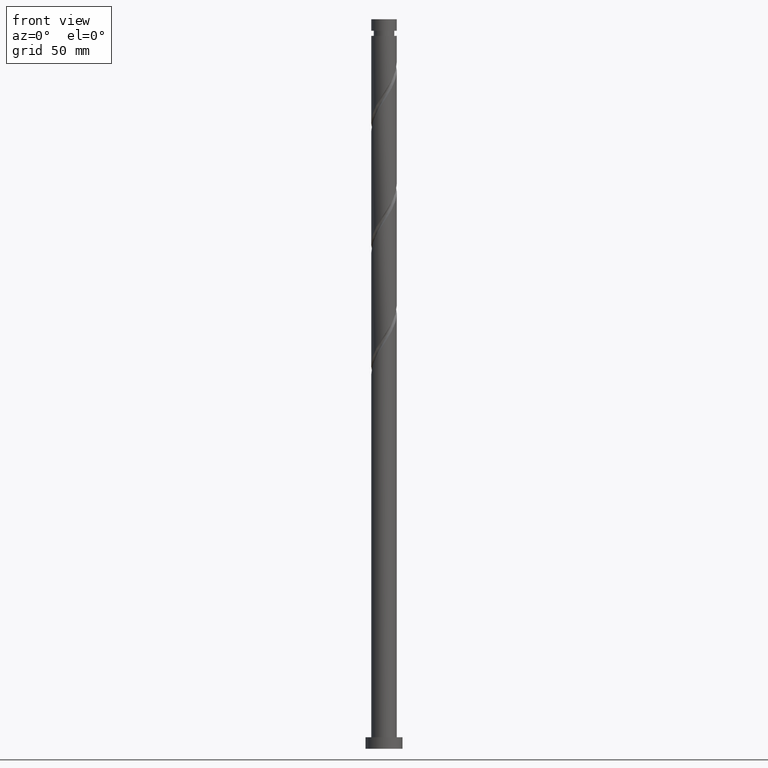
[diagram: clean part render]
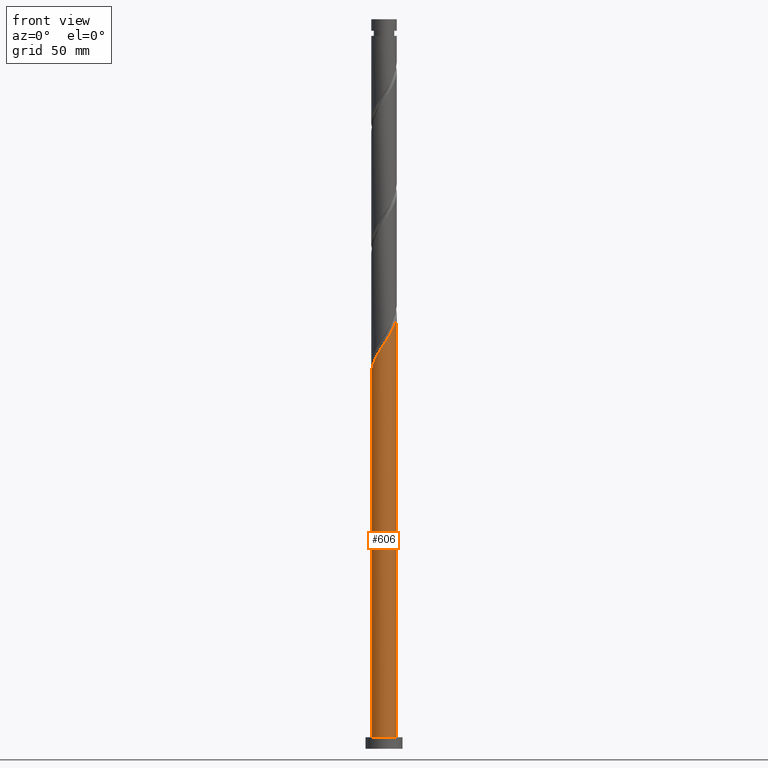
[diagram: same view with one face highlighted and labeled with its STEP entity id]
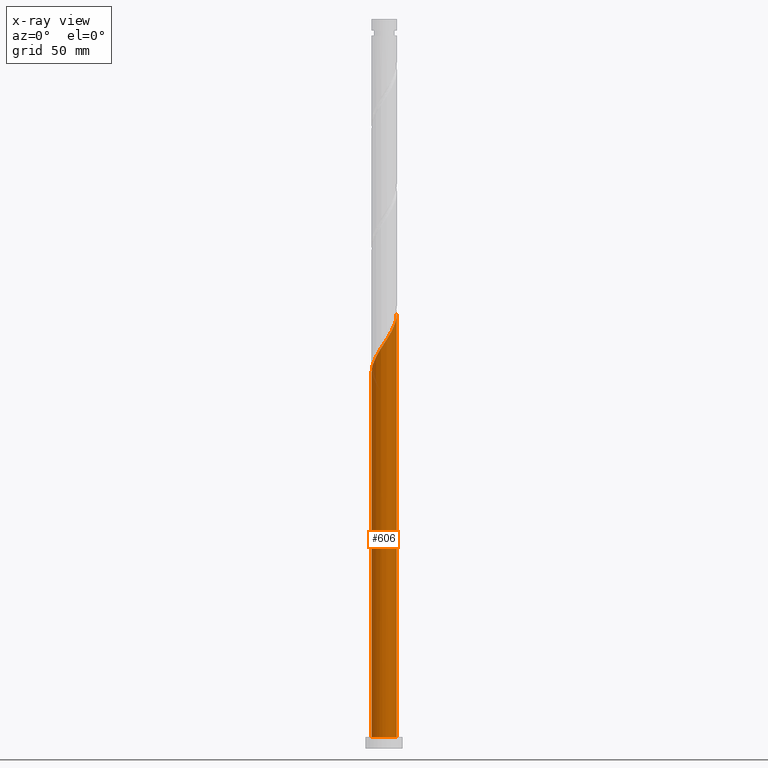
[diagram: x-ray of the same camera — body ghosted, the highlighted face saturated]
A machine part, front view. The second image highlights one B-rep face of the part: STEP entity #606.
The next image is the same camera in x-ray: the body ghosted, the highlighted face saturated — about 0% of this face is hidden behind the body in this view.
In plain terms, the highlighted cylindrical surface (edge-blend (fillet) strip) has radius 5.5 mm, axis along (-0, -0, -1).
Its self-contained STEP definition (entity closure, byte-faithful):
#5 = CARTESIAN_POINT ( 'NONE',  ( 0.000000000000000000, 0.000000000000000000, 315.0000000000000000 ) ) ;
#17 = DIRECTION ( 'NONE',  ( -1.000000000000000000, 0.000000000000000000, 0.000000000000000000 ) ) ;
#32 = CARTESIAN_POINT ( 'NONE',  ( -4.755949694677310546, -2.831072595522295732, 166.2382921569054020 ) ) ;
#40 = CARTESIAN_POINT ( 'NONE',  ( -5.266681024327279026, -1.701793326878884738, 164.3632921569053735 ) ) ;
#61 = EDGE_LOOP ( 'NONE', ( #1679, #1676, #1774, #801 ) ) ;
#79 = CARTESIAN_POINT ( 'NONE',  ( 4.216313785307728601, -3.531670718487794680, 182.1757921569054020 ) ) ;
#118 = CARTESIAN_POINT ( 'NONE',  ( 5.178707817116268153, -1.953206308703049121, 184.9882921569054020 ) ) ;
#176 = CARTESIAN_POINT ( 'NONE',  ( -5.500000000000007994, -0.5527707983925679303, 162.5895461579629000 ) ) ;
#203 = DIRECTION ( 'NONE',  ( 1.000000000000000000, 0.000000000000000000, 0.000000000000000000 ) ) ;
#223 = CARTESIAN_POINT ( 'NONE',  ( 2.831072595522295732, -4.755949694677310546, 179.3632921569054020 ) ) ;
#240 = CARTESIAN_POINT ( 'NONE',  ( -0.1323427068484825109, -5.498407533817776915, 174.6757921569053735 ) ) ;
#363 = CARTESIAN_POINT ( 'NONE',  ( 0.000000000000000000, 0.000000000000000000, 5.000000000000000000 ) ) ;
#371 = DIRECTION ( 'NONE',  ( 0.000000000000000000, 0.000000000000000000, 1.000000000000000000 ) ) ;
#378 = CARTESIAN_POINT ( 'NONE',  ( 4.896472662517576069, -2.504906278729428948, 184.0507921569053451 ) ) ;
#417 = CARTESIAN_POINT ( 'NONE',  ( -1.352535378577850000, -5.331101954539544607, 172.8007921569053167 ) ) ;
#443 = VERTEX_POINT ( 'NONE', #563 ) ;
#451 = VERTEX_POINT ( 'NONE', #1161 ) ;
#501 = CARTESIAN_POINT ( 'NONE',  ( -4.006735188219782806, -3.818390062696571441, 168.1132921569053735 ) ) ;
#529 = CARTESIAN_POINT ( 'NONE',  ( -3.056606248755807886, -4.614237507918886649, 169.9882921569053735 ) ) ;
#538 = CARTESIAN_POINT ( 'NONE',  ( 5.500000000000005329, -0.06618093441514699693, 187.9009123907741525 ) ) ;
#563 = CARTESIAN_POINT ( 'NONE',  ( -5.500000000000000000, 0.000000000000000000, 5.000000000000000000 ) ) ;
#587 = VECTOR ( 'NONE', #770, 1000.000000000000000 ) ;
#606 = ADVANCED_FACE ( 'NONE', ( #1915 ), #1471, .T. ) ;
#638 = CARTESIAN_POINT ( 'NONE',  ( -4.381342441448544456, -3.324731329109432476, 167.1757921569053735 ) ) ;
#671 = CARTESIAN_POINT ( 'NONE',  ( -5.500000000000006217, -1.440337144827273553E-15, 161.7512750789992992 ) ) ;
#679 = CARTESIAN_POINT ( 'NONE',  ( 5.483496091962820174, -0.7518644484526513239, 186.8632921569054588 ) ) ;
#703 = CARTESIAN_POINT ( 'NONE',  ( 2.266432961200590235, -5.011315359502294342, 178.4257921569054020 ) ) ;
#747 = CIRCLE ( 'NONE', #1830, 5.500000000000000000 ) ;
#751 = VECTOR ( 'NONE', #1233, 1000.000000000000000 ) ;
#770 = DIRECTION ( 'NONE',  ( -0.000000000000000000, -0.000000000000000000, -1.000000000000000000 ) ) ;
#801 = ORIENTED_EDGE ( 'NONE', *, *, #880, .T. ) ;
#822 =( BOUNDED_CURVE ( )  B_SPLINE_CURVE ( 2, ( #671, #176, #1256, #40, #1707, #32, #638, #501, #953, #529, #869, #1571, #417, #1875, #240, #1884, #1450, #1744, #703, #223, #1120, #1423, #79, #1900, #378, #118, #1867, #679, #1892, #538, #982 ),
 .UNSPECIFIED., .F., .T. ) 
 B_SPLINE_CURVE_WITH_KNOTS ( ( 3, 2, 2, 2, 2, 2, 2, 2, 2, 2, 2, 2, 2, 2, 2, 3 ),
 ( 0.05453034012992206969, 0.06250000000000000000, 0.07142857142857139685, 0.08035714285714290472, 0.08928571428571430157, 0.09821428571428569843, 0.1071428571428570953, 0.1160714285714286031, 0.1250000000000000000, 0.1339285714285713969, 0.1428571428571429047, 0.1517857142857143016, 0.1607142857142856984, 0.1696428571428570953, 0.1785714285714286031, 0.1795303401299220836 ),
 .UNSPECIFIED. ) 
 CURVE ( )  GEOMETRIC_REPRESENTATION_ITEM ( )  RATIONAL_B_SPLINE_CURVE ( ( 0.9079949616362037457, 0.9039886423360669054, 0.9090909090909338186, 0.9033747362666085801, 0.9090909090909338186, 0.9033747362666085801, 0.9090909090909338186, 0.9033747362666085801, 0.9090909090909338186, 0.9033747362666085801, 0.9090909090909338186, 0.9033747362666085801, 0.9090909090909338186, 0.9033747362666085801, 0.9090909090909338186, 0.9033747362666085801, 0.9090909090909338186, 0.9033747362666085801, 0.9090909090909338186, 0.9033747362666085801, 0.9090909090909338186, 0.9033747362666085801, 0.9090909090909338186, 0.9033747362666085801, 0.9090909090909338186, 0.9033747362666085801, 0.9090909090909338186, 0.9033747362666085801, 0.9090909090909338186, 0.9084770030214756042, 0.9079949616362038567 ) ) 
 REPRESENTATION_ITEM ( '' )  );
#869 = CARTESIAN_POINT ( 'NONE',  ( -2.504906278729428060, -4.896472662517576069, 170.9257921569053735 ) ) ;
#880 = EDGE_CURVE ( 'NONE', #443, #451, #747, .T. ) ;
#953 = CARTESIAN_POINT ( 'NONE',  ( -3.531670718487794236, -4.216313785307728601, 169.0507921569054304 ) ) ;
#972 = CARTESIAN_POINT ( 'NONE',  ( 5.500000000000006217, 6.268824879040983257E-16, 188.0012750789992708 ) ) ;
#982 = CARTESIAN_POINT ( 'NONE',  ( 5.500000000000006217, 6.268824879040983257E-16, 188.0012750789992424 ) ) ;
#1032 = VERTEX_POINT ( 'NONE', #972 ) ;
#1055 = CARTESIAN_POINT ( 'NONE',  ( 5.500000000000000000, 6.735557395310442023E-16, 315.0000000000000000 ) ) ;
#1071 = EDGE_CURVE ( 'NONE', #1721, #1032, #822, .T. ) ;
#1120 = CARTESIAN_POINT ( 'NONE',  ( 3.324731329109432476, -4.381342441448544456, 180.3007921569053735 ) ) ;
#1161 = CARTESIAN_POINT ( 'NONE',  ( 5.500000000000000000, 6.735557395310442023E-16, 5.000000000000000000 ) ) ;
#1233 = DIRECTION ( 'NONE',  ( -0.000000000000000000, -0.000000000000000000, -1.000000000000000000 ) ) ;
#1256 = CARTESIAN_POINT ( 'NONE',  ( -5.390000000000005898, -1.094486180817284771, 163.4257921569054020 ) ) ;
#1325 = EDGE_CURVE ( 'NONE', #1032, #451, #1633, .T. ) ;
#1423 = CARTESIAN_POINT ( 'NONE',  ( 3.818390062696571441, -4.006735188219782806, 181.2382921569053735 ) ) ;
#1450 = CARTESIAN_POINT ( 'NONE',  ( 1.094486180817284549, -5.390000000000005898, 176.5507921569053451 ) ) ;
#1469 = EDGE_CURVE ( 'NONE', #1721, #443, #1527, .T. ) ;
#1471 = CYLINDRICAL_SURFACE ( 'NONE', #1641, 5.500000000000000000 ) ;
#1508 = CARTESIAN_POINT ( 'NONE',  ( -5.500000000000000000, 0.000000000000000000, 315.0000000000000000 ) ) ;
#1527 = LINE ( 'NONE', #1508, #751 ) ;
#1571 = CARTESIAN_POINT ( 'NONE',  ( -1.953206308703049121, -5.178707817116268153, 171.8632921569053735 ) ) ;
#1633 = LINE ( 'NONE', #1055, #587 ) ;
#1641 = AXIS2_PLACEMENT_3D ( 'NONE', #5, #1656, #17 ) ;
#1656 = DIRECTION ( 'NONE',  ( -0.000000000000000000, -0.000000000000000000, -1.000000000000000000 ) ) ;
#1676 = ORIENTED_EDGE ( 'NONE', *, *, #1071, .F. ) ;
#1679 = ORIENTED_EDGE ( 'NONE', *, *, #1325, .F. ) ;
#1707 = CARTESIAN_POINT ( 'NONE',  ( -5.011315359502294342, -2.266432961200590235, 165.3007921569053735 ) ) ;
#1721 = VERTEX_POINT ( 'NONE', #1722 ) ;
#1722 = CARTESIAN_POINT ( 'NONE',  ( -5.500000000000006217, -1.440337144827273553E-15, 161.7512750789993277 ) ) ;
#1744 = CARTESIAN_POINT ( 'NONE',  ( 1.701793326878884072, -5.266681024327279026, 177.4882921569054020 ) ) ;
#1774 = ORIENTED_EDGE ( 'NONE', *, *, #1469, .T. ) ;
#1830 = AXIS2_PLACEMENT_3D ( 'NONE', #363, #371, #203 ) ;
#1867 = CARTESIAN_POINT ( 'NONE',  ( 5.331101954539544607, -1.352535378577850000, 185.9257921569053167 ) ) ;
#1875 = CARTESIAN_POINT ( 'NONE',  ( -0.7518644484526509908, -5.483496091962820174, 173.7382921569054020 ) ) ;
#1884 = CARTESIAN_POINT ( 'NONE',  ( 0.4871790347556856915, -5.513318975672735434, 175.6132921569053451 ) ) ;
#1892 = CARTESIAN_POINT ( 'NONE',  ( 5.498407533817776915, -0.1323427068484828995, 187.8007921569052883 ) ) ;
#1900 = CARTESIAN_POINT ( 'NONE',  ( 4.614237507918888426, -3.056606248755808775, 183.1132921569053451 ) ) ;
#1915 = FACE_OUTER_BOUND ( 'NONE', #61, .T. ) ;